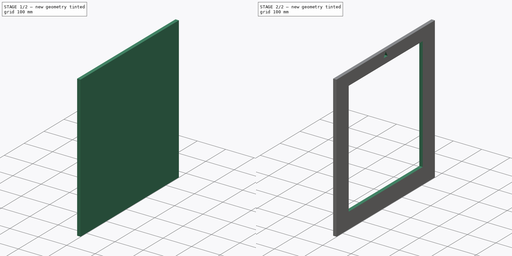
[diagram: build sequence overview — one tinted view per stage of 2, left to right]
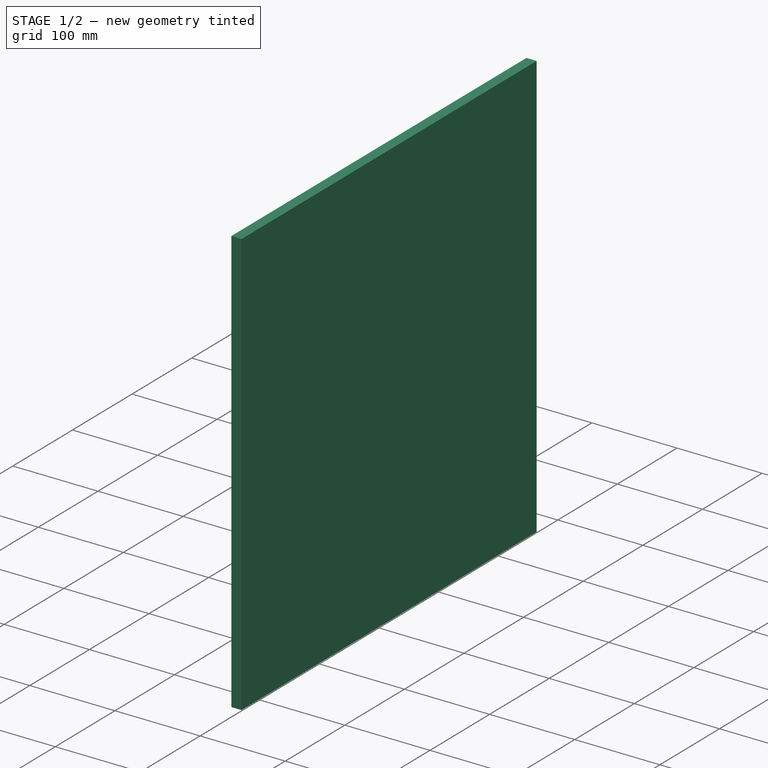
[diagram: stage 1 of 2 — iso view after this stage's code; geometry added in this stage tinted green]
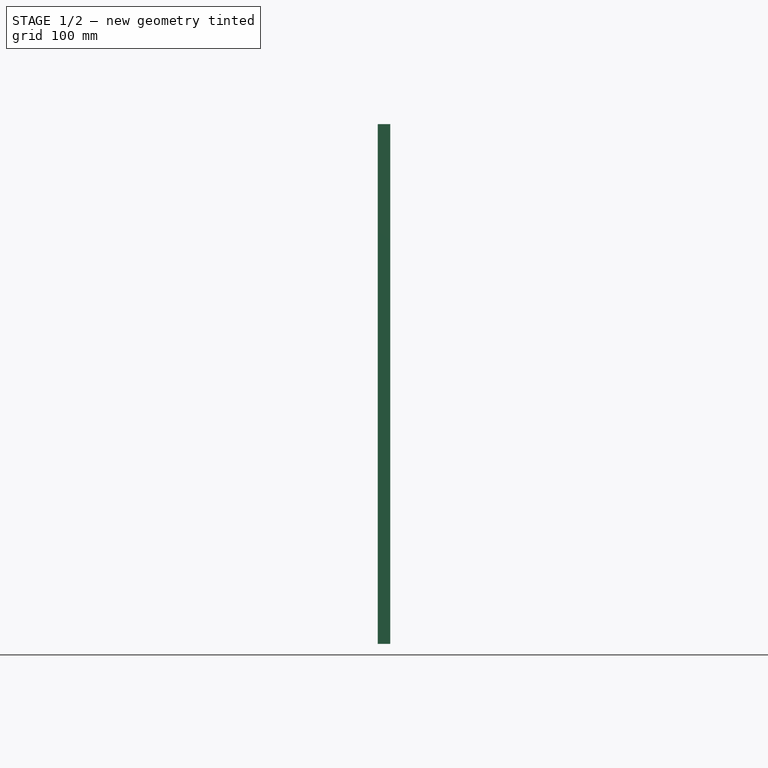
[diagram: stage 1 of 2 — front view after this stage's code; geometry added in this stage tinted green]
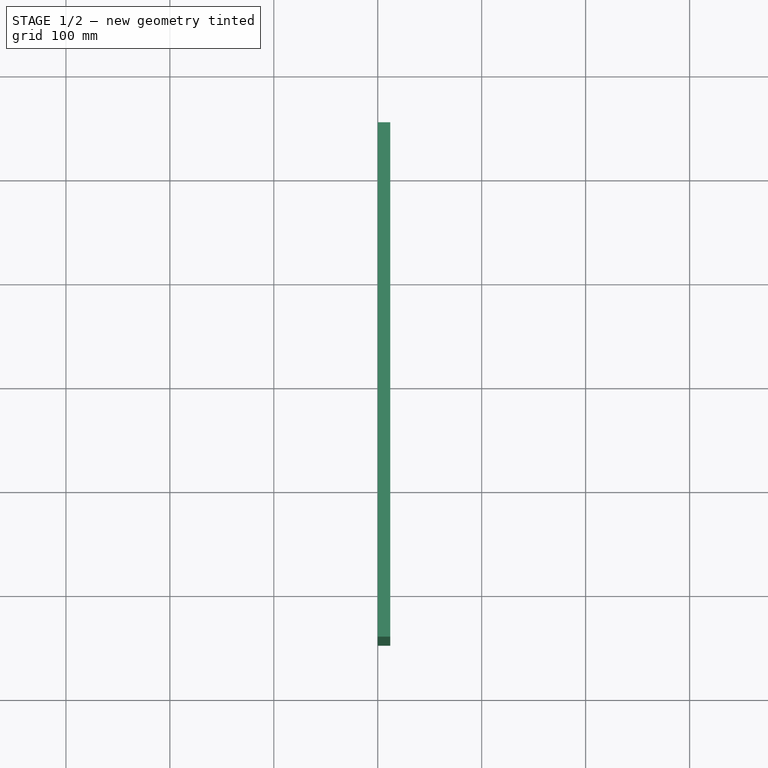
[diagram: stage 1 of 2 — top view after this stage's code; geometry added in this stage tinted green]
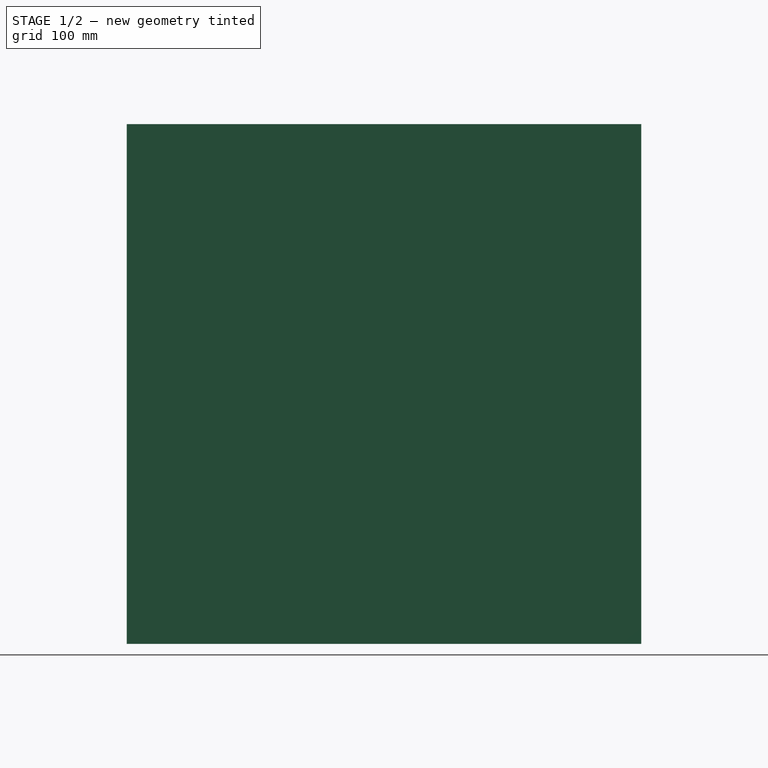
[diagram: stage 1 of 2 — right view after this stage's code; geometry added in this stage tinted green]
FCSTD DOCUMENT  (FreeCAD 0.19R24276 (Git))
Label: 8010_BOX_Frame_Front
License: All rights reserved
LicenseURL: http://en.wikipedia.org/wiki/All_rights_reserved
objects: Sketcher::SketchObject×2, Spreadsheet::Sheet×1, App::Part×1, PartDesign::Pad×1, PartDesign::Pocket×1, PartDesign::Body×1
note: 7 computed .brp shape members not serialized (recipe doc carries the construction recipe); baked Part::Feature solids carry a one-line shape summary decoded from their .brp

FEATURE [Spreadsheet::Sheet] Spreadsheet
  cells = B2=FRAME BASE; B3=Z=; C3(T)=12; D3=.T; E3=Thichness; B4=Y=; C4(Width)=280; D4=.W; E4=Width; B5=X=; C5(Depth)=495; D5=.D; E5=Depth
FEATURE [App::Part] Part
  License = CC BY 3.0
  LicenseURL = http://creativecommons.org/licenses/by/3.0/
  Origin = -> Origin
FEATURE [Sketcher::SketchObject] Sketch
  FullyConstrained = false
  MapMode = 5
  Placement = pos=(0,0,0) rot=(0.57735,0.57735,0.57735;2.0944rad)
  Support = -> [YZ_Plane001]
  sketch-geometry (6):
    g0: LineSegment StartX=-247.5 StartY=0 StartZ=0 EndX=-247.5 EndY=500 EndZ=0
    g1: LineSegment StartX=-247.5 StartY=500 StartZ=0 EndX=247.5 EndY=500 EndZ=0
    g2: LineSegment StartX=247.5 StartY=500 StartZ=0 EndX=247.5 EndY=0 EndZ=0
    g3: LineSegment StartX=-247.5 StartY=0 StartZ=0 EndX=247.5 EndY=0 EndZ=0
    g4: LineSegment StartX=-247.5 StartY=0 StartZ=0 EndX=0 EndY=93.8238 EndZ=0
    g5: LineSegment StartX=0 StartY=93.8238 StartZ=0 EndX=247.5 EndY=0 EndZ=0
  constraints (16):
    c: Coincident(g1,g0)
    c: Coincident(g2,g1)
    c: Horizontal(g1)
    c: DistanceX(g1,g1) = 495
    c: Coincident(g3,g0)
    c: Coincident(g3,g2)
    c: Equal(g3,g1)
    c: Horizontal(g3)
    c: Vertical(g2)
    c: DistanceY(g2,g2) = 500
    c: Coincident(g4,g0)
    c: Coincident(g5,g4)
    c: Coincident(g5,g2)
    c: Equal(g5,g4)
    c: Vertical(g-1,g4)
    c: PointOnObject(g2,g-1)
FEATURE [PartDesign::Pad] Pad
  Direction = (1,1,1)
  Length = 12
  Length2 = 100
  Placement = pos=(0,0,0) rot=(0.57735,0.57735,0.57735;2.0944rad)
  Profile = -> Sketch
  Type = 0
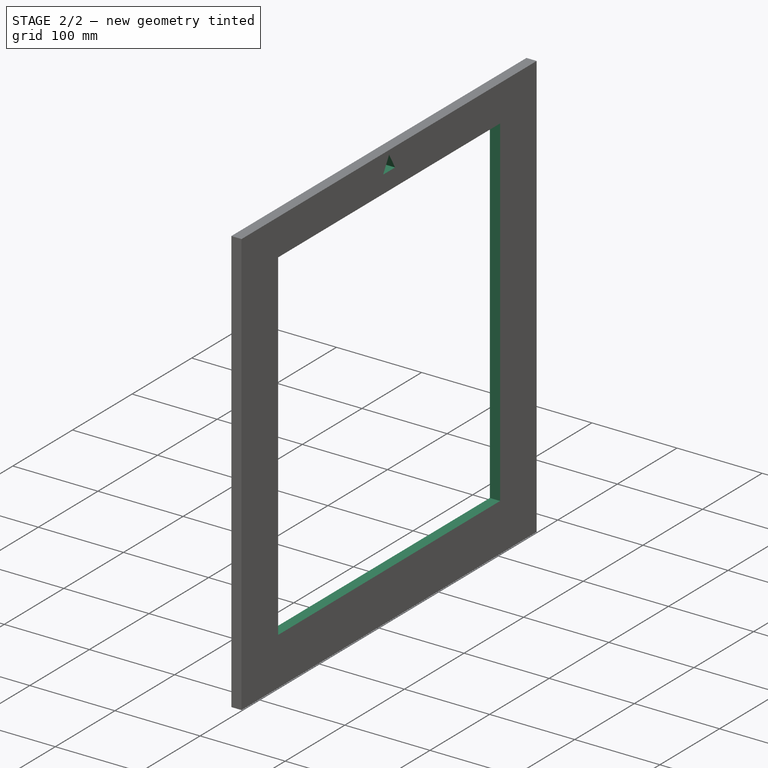
[diagram: stage 2 of 2 — iso view after this stage's code; geometry added in this stage tinted green]
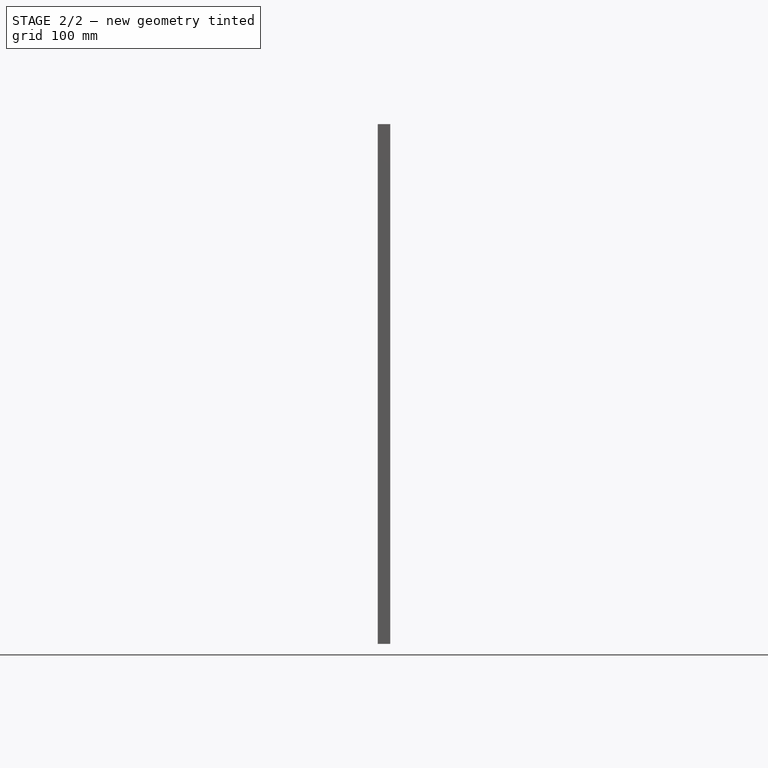
[diagram: stage 2 of 2 — front view after this stage's code; geometry added in this stage tinted green]
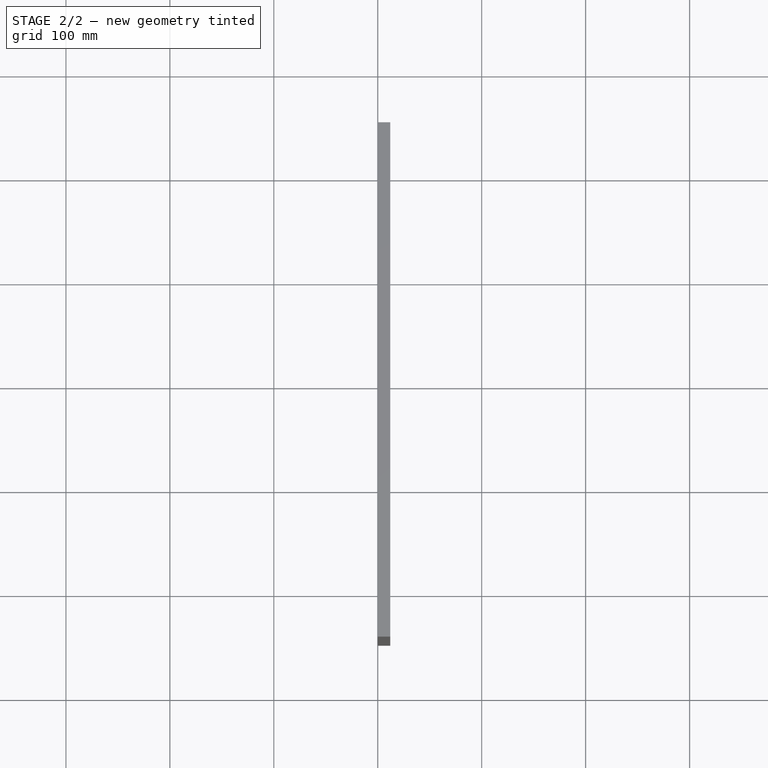
[diagram: stage 2 of 2 — top view after this stage's code; geometry added in this stage tinted green]
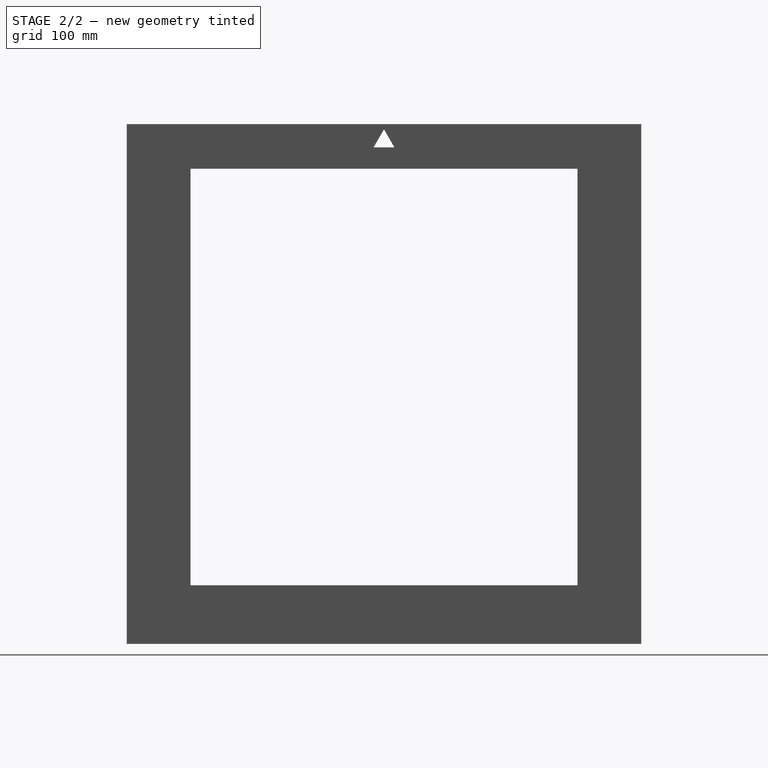
[diagram: stage 2 of 2 — right view after this stage's code; geometry added in this stage tinted green]
FEATURE [Sketcher::SketchObject] Sketch001
  FullyConstrained = false
  MapMode = 5
  Placement = pos=(12,-2.6e-15,2.6e-15) rot=(0.57735,0.57735,0.57735;2.0944rad)
  Support = -> [Pad]
  sketch-geometry (9):
    g0: LineSegment StartX=0 StartY=495 StartZ=0 EndX=-10 EndY=477.679 EndZ=0
    g1: LineSegment StartX=-10 StartY=477.679 StartZ=0 EndX=10 EndY=477.679 EndZ=0
    g2: LineSegment StartX=10 StartY=477.679 StartZ=0 EndX=0 EndY=495 EndZ=0
    g3: LineSegment StartX=-186.152 StartY=457.116 StartZ=0 EndX=186.152 EndY=457.116 EndZ=0
    g4: LineSegment StartX=186.152 StartY=457.116 StartZ=0 EndX=186.152 EndY=56.3259 EndZ=0
    g5: LineSegment StartX=186.152 StartY=56.3259 StartZ=0 EndX=-186.152 EndY=56.3259 EndZ=0
    g6: LineSegment StartX=-186.152 StartY=56.3259 StartZ=0 EndX=-186.152 EndY=457.116 EndZ=0
    g7: LineSegment StartX=-186.152 StartY=56.3259 StartZ=0 EndX=0 EndY=168.545 EndZ=0
    g8: LineSegment StartX=0 StartY=168.545 StartZ=0 EndX=186.152 EndY=56.3259 EndZ=0
  constraints (22):
    c: PointOnObject(g0,g-2)
    c: Coincident(g1,g0)
    c: Horizontal(g1)
    c: Coincident(g2,g1)
    c: Coincident(g2,g0)
    c: Equal(g2,g1)
    c: Equal(g1,g0)
    c: DistanceY(g-1,g0) = 495
    c: Distance(g2) = 20
    c: Coincident(g3,g4)
    c: Coincident(g4,g5)
    c: Coincident(g5,g6)
    c: Coincident(g6,g3)
    c: Horizontal(g3)
    c: Horizontal(g5)
    c: Vertical(g4)
    c: Vertical(g6)
    c: Coincident(g7,g5)
    c: Coincident(g8,g7)
    c: Coincident(g8,g4)
    c: Equal(g8,g7)
    c: PointOnObject(g7,g-2)
FEATURE [PartDesign::Pocket] Pocket
  BaseFeature = -> Pad
  Length = 5
  Length2 = 100
  Placement = pos=(0,0,0) rot=(0.57735,0.57735,0.57735;2.0944rad)
  Profile = -> Sketch001
  Type = 1
FEATURE [PartDesign::Body] Body
  Group = -> [Sketch,Pad,Sketch001,Pocket]
  Origin = -> Origin001
  Tip = -> Pocket
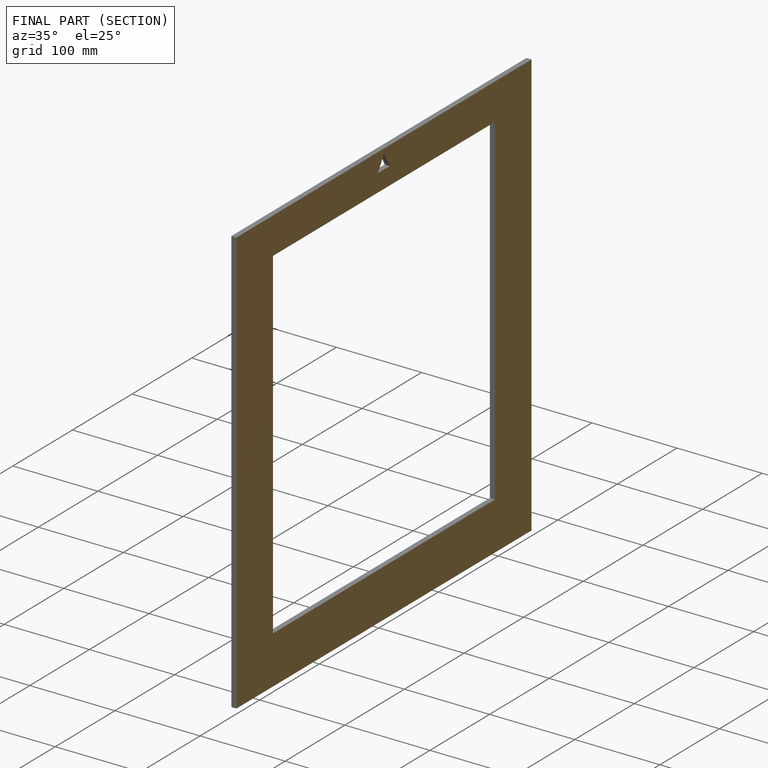
[diagram: finished part — half-section view (interior)]
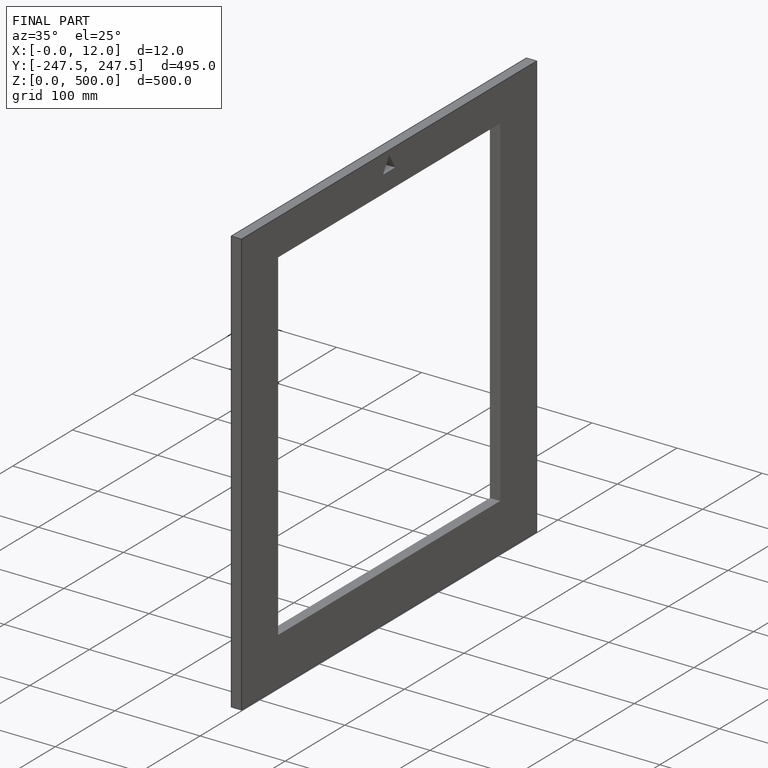
[diagram: finished part — iso view with bounding-box wireframe]
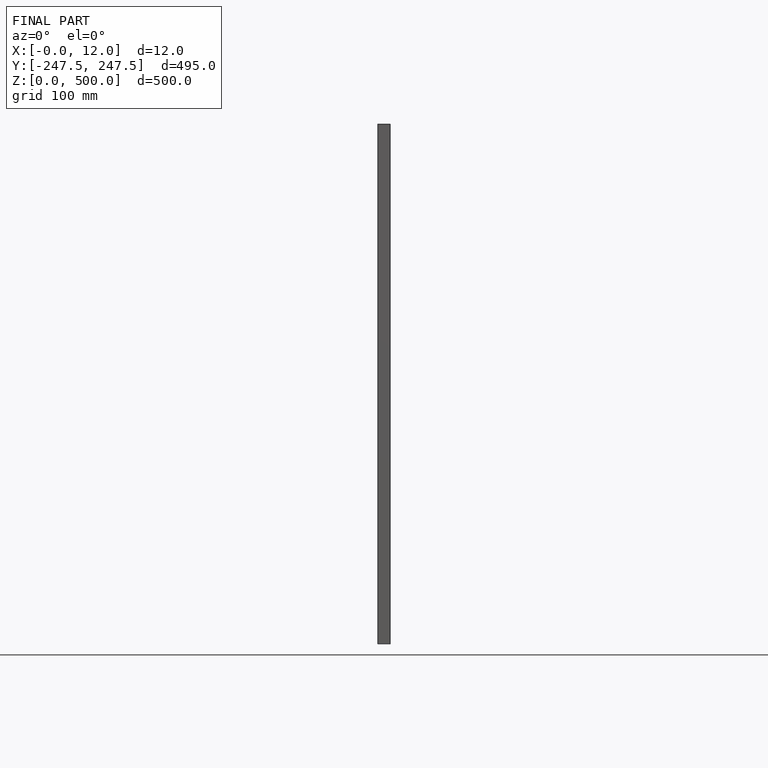
[diagram: finished part — front view with bounding-box wireframe]
